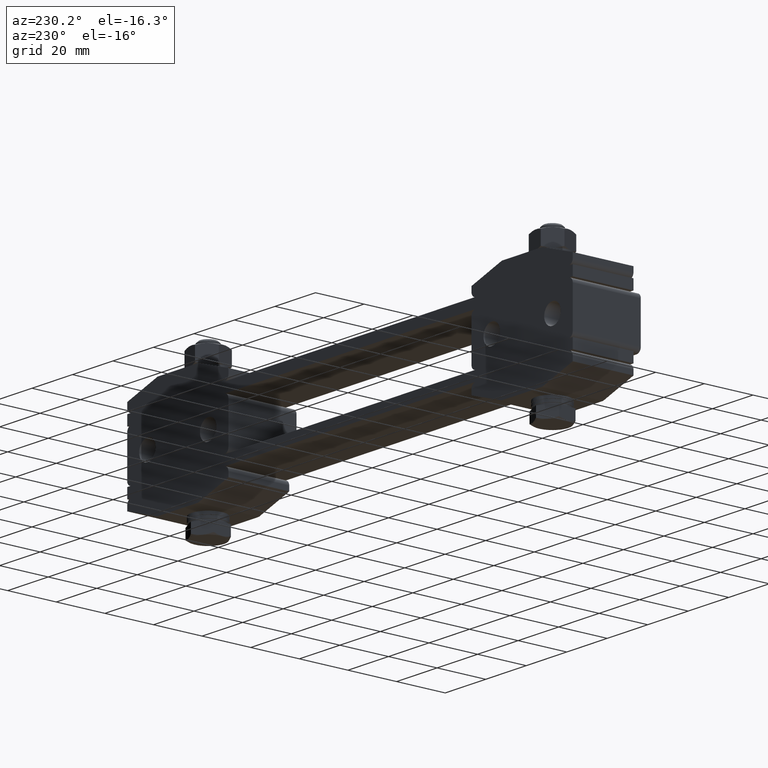
[diagram: clean part render]
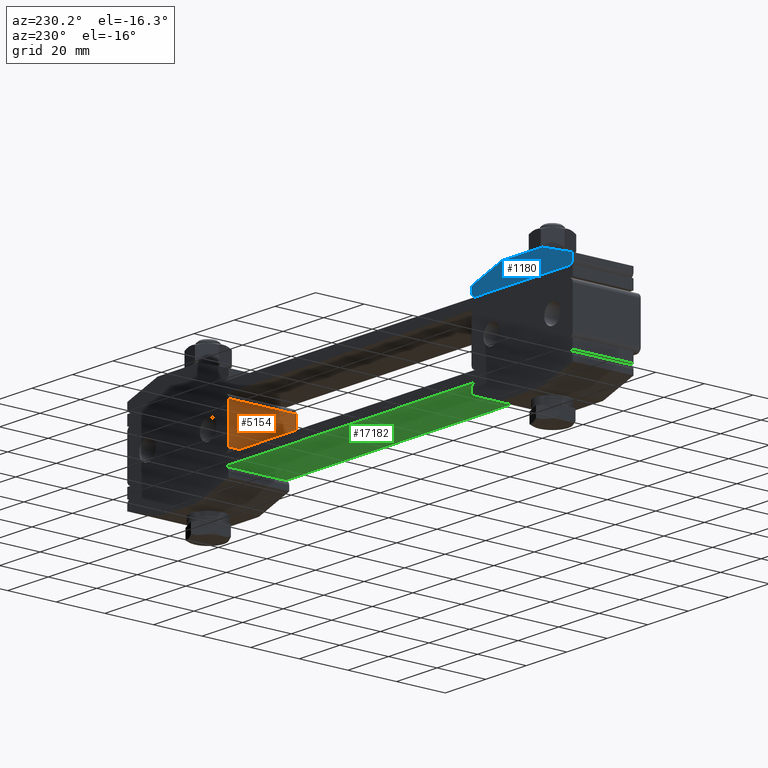
[diagram: same view with three faces highlighted in distinct colors, each labeled with its STEP entity id]
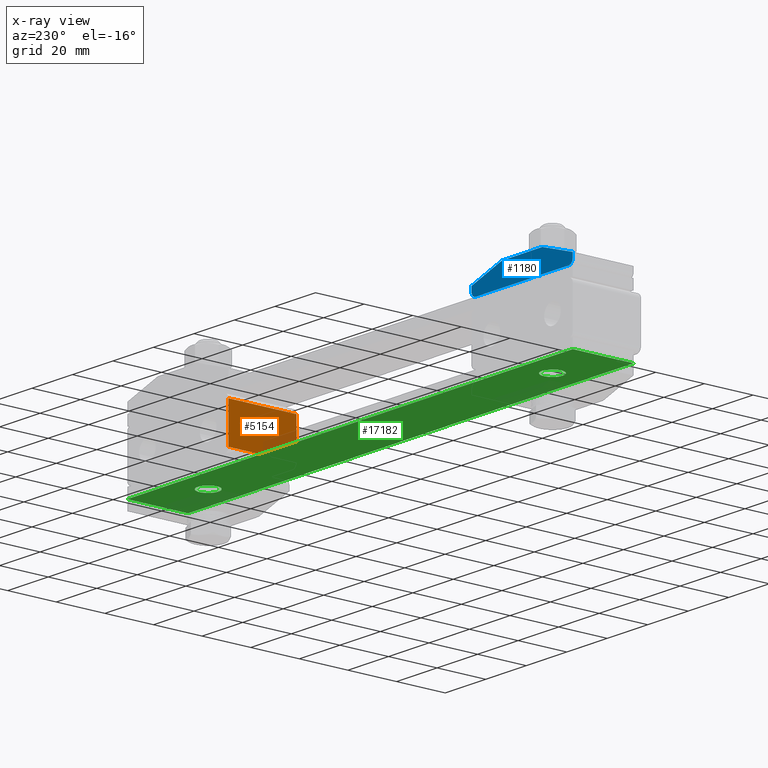
[diagram: x-ray of the same camera — body ghosted, the three highlighted faces saturated]
A machine part, auxiliary view with three faces highlighted in distinct colors.
The next image is the same camera in x-ray (body ghosted, the three faces saturated) — at least one of them is partly hidden behind the body in this view.
Their STEP definitions:

[orange] entity #5154 — the highlighted planar face has unit normal (1, 0, 0).
#292 = DIRECTION ( 'NONE',  ( 1.110223024625156100E-015, 1.000000000000000000, -0.0000000000000000000 ) ) ;
#338 = CARTESIAN_POINT ( 'NONE',  ( 60.00000000000000000, -15.50000000000000000, 6.000000000000000000 ) ) ;
#780 = ORIENTED_EDGE ( 'NONE', *, *, #11799, .T. ) ;
#1093 = EDGE_CURVE ( 'NONE', #10377, #19100, #16262, .T. ) ;
#1196 = CARTESIAN_POINT ( 'NONE',  ( 60.00000000000000000, 12.50000000000000000, 6.000000000000000000 ) ) ;
#1441 = VECTOR ( 'NONE', #292, 1000.000000000000000 ) ;
#2305 = EDGE_CURVE ( 'NONE', #14772, #10377, #12950, .T. ) ;
#3160 = EDGE_CURVE ( 'NONE', #8403, #19100, #17470, .T. ) ;
#4385 = DIRECTION ( 'NONE',  ( 0.0000000000000000000, 0.0000000000000000000, -1.000000000000000000 ) ) ;
#4889 = DIRECTION ( 'NONE',  ( 0.0000000000000000000, 0.0000000000000000000, -1.000000000000000000 ) ) ;
#4960 = VECTOR ( 'NONE', #15209, 1000.000000000000000 ) ;
#5154 = ADVANCED_FACE ( 'NONE', ( #7919 ), #19073, .F. ) ;
#6341 = CARTESIAN_POINT ( 'NONE',  ( 60.00000000000000000, 12.50000000000000000, 22.00000000000000000 ) ) ;
#6703 = CARTESIAN_POINT ( 'NONE',  ( 60.00000000000000000, -15.50000000000000000, 24.00000000000000000 ) ) ;
#7076 = DIRECTION ( 'NONE',  ( 0.0000000000000000000, 0.0000000000000000000, -1.000000000000000000 ) ) ;
#7919 = FACE_OUTER_BOUND ( 'NONE', #13809, .T. ) ;
#8403 = VERTEX_POINT ( 'NONE', #18867 ) ;
#8503 = CARTESIAN_POINT ( 'NONE',  ( 60.00000000000000000, 12.50000000000000000, 24.00000000000000000 ) ) ;
#9252 = ORIENTED_EDGE ( 'NONE', *, *, #2305, .T. ) ;
#10377 = VERTEX_POINT ( 'NONE', #1196 ) ;
#10996 = LINE ( 'NONE', #15169, #1441 ) ;
#11799 = EDGE_CURVE ( 'NONE', #8403, #14772, #10996, .T. ) ;
#12950 = LINE ( 'NONE', #8503, #13993 ) ;
#13809 = EDGE_LOOP ( 'NONE', ( #15962, #780, #9252, #20652 ) ) ;
#13993 = VECTOR ( 'NONE', #7076, 1000.000000000000000 ) ;
#14323 = CARTESIAN_POINT ( 'NONE',  ( 60.00000000000000000, 12.50000000000000000, 24.00000000000000000 ) ) ;
#14772 = VERTEX_POINT ( 'NONE', #6341 ) ;
#15169 = CARTESIAN_POINT ( 'NONE',  ( 60.00000000000000000, 12.50000000000000000, 22.00000000000000000 ) ) ;
#15209 = DIRECTION ( 'NONE',  ( -1.110223024625156100E-015, -1.000000000000000000, 0.0000000000000000000 ) ) ;
#15962 = ORIENTED_EDGE ( 'NONE', *, *, #3160, .F. ) ;
#16262 = LINE ( 'NONE', #18683, #4960 ) ;
#17470 = LINE ( 'NONE', #6703, #20581 ) ;
#18683 = CARTESIAN_POINT ( 'NONE',  ( 60.00000000000000000, 12.50000000000000000, 6.000000000000000000 ) ) ;
#18867 = CARTESIAN_POINT ( 'NONE',  ( 60.00000000000000000, -15.50000000000000000, 22.00000000000000000 ) ) ;
#19073 = PLANE ( 'NONE',  #19140 ) ;
#19100 = VERTEX_POINT ( 'NONE', #338 ) ;
#19140 = AXIS2_PLACEMENT_3D ( 'NONE', #14323, #20886, #4385 ) ;
#20581 = VECTOR ( 'NONE', #4889, 1000.000000000000000 ) ;
#20652 = ORIENTED_EDGE ( 'NONE', *, *, #1093, .T. ) ;
#20886 = DIRECTION ( 'NONE',  ( 1.000000000000000000, 1.110223024625156100E-015, 0.0000000000000000000 ) ) ;

[blue] entity #1180 — the highlighted planar face has unit normal (-0, -1, 0).
#906 = VERTEX_POINT ( 'NONE', #15766 ) ;
#1180 = ADVANCED_FACE ( 'NONE', ( #8062 ), #20136, .F. ) ;
#1223 = CARTESIAN_POINT ( 'NONE',  ( -62.00000000000000000, 12.50000000000000000, 28.00000000000000000 ) ) ;
#1715 = ORIENTED_EDGE ( 'NONE', *, *, #17797, .F. ) ;
#1855 = VECTOR ( 'NONE', #13925, 1000.000000000000000 ) ;
#2019 = ORIENTED_EDGE ( 'NONE', *, *, #21202, .T. ) ;
#2196 = CARTESIAN_POINT ( 'NONE',  ( -62.00000000000000000, 12.50000000000000000, 30.00000000000000000 ) ) ;
#2410 = DIRECTION ( 'NONE',  ( 0.0000000000000000000, 0.0000000000000000000, -1.000000000000000000 ) ) ;
#2517 = CARTESIAN_POINT ( 'NONE',  ( -110.0000000000000000, 12.50000000000000000, 32.00000000000000000 ) ) ;
#2633 = EDGE_CURVE ( 'NONE', #5238, #3286, #13970, .T. ) ;
#2989 = EDGE_LOOP ( 'NONE', ( #13761, #4299, #1715, #9141, #4063, #11942, #2019, #16783 ) ) ;
#3069 = VECTOR ( 'NONE', #6452, 999.9999999999998900 ) ;
#3198 = LINE ( 'NONE', #15497, #13002 ) ;
#3286 = VERTEX_POINT ( 'NONE', #1223 ) ;
#3907 = DIRECTION ( 'NONE',  ( -5.519574696289929800E-017, -1.000000000000000000, 4.040289502454740700E-018 ) ) ;
#4063 = ORIENTED_EDGE ( 'NONE', *, *, #14623, .T. ) ;
#4299 = ORIENTED_EDGE ( 'NONE', *, *, #2633, .T. ) ;
#4366 = AXIS2_PLACEMENT_3D ( 'NONE', #18620, #8880, #2410 ) ;
#4717 = CARTESIAN_POINT ( 'NONE',  ( -110.0000000000000000, 12.50000000000000000, 30.00000000000000000 ) ) ;
#5099 = LINE ( 'NONE', #9661, #13623 ) ;
#5238 = VERTEX_POINT ( 'NONE', #6479 ) ;
#5716 = DIRECTION ( 'NONE',  ( 1.000000000000000000, -5.519574696289799800E-017, -1.387778780781432000E-017 ) ) ;
#6452 = DIRECTION ( 'NONE',  ( 0.9486832980505142100, -5.364093499054570500E-017, -0.3162277660168371100 ) ) ;
#6479 = CARTESIAN_POINT ( 'NONE',  ( -60.00000000000000000, 12.50000000000000000, 30.00000000000000000 ) ) ;
#6709 = EDGE_CURVE ( 'NONE', #8352, #14771, #3198, .T. ) ;
#7706 = EDGE_CURVE ( 'NONE', #15516, #11515, #17494, .T. ) ;
#8062 = FACE_OUTER_BOUND ( 'NONE', #2989, .T. ) ;
#8352 = VERTEX_POINT ( 'NONE', #2517 ) ;
#8880 = DIRECTION ( 'NONE',  ( 5.519574696289929800E-017, 1.000000000000000000, -4.040289502454674500E-018 ) ) ;
#8925 = VECTOR ( 'NONE', #18971, 1000.000000000000000 ) ;
#9141 = ORIENTED_EDGE ( 'NONE', *, *, #7706, .T. ) ;
#9358 = CARTESIAN_POINT ( 'NONE',  ( -110.0000000000000000, 12.50000000000000000, 28.00000000000000000 ) ) ;
#9433 = LINE ( 'NONE', #9358, #8925 ) ;
#9661 = CARTESIAN_POINT ( 'NONE',  ( -60.00000000000000000, 12.50000000000000000, 28.00000000000000000 ) ) ;
#9685 = CARTESIAN_POINT ( 'NONE',  ( -103.8000000000000000, 12.50000000000000000, 46.60000000000000100 ) ) ;
#10295 = LINE ( 'NONE', #12354, #12870 ) ;
#10364 = LINE ( 'NONE', #12266, #1855 ) ;
#10499 = DIRECTION ( 'NONE',  ( 0.0000000000000000000, 0.0000000000000000000, -1.000000000000000000 ) ) ;
#10991 = DIRECTION ( 'NONE',  ( 5.519574696289929800E-017, 1.000000000000000000, -4.040289502454674500E-018 ) ) ;
#11515 = VERTEX_POINT ( 'NONE', #4717 ) ;
#11942 = ORIENTED_EDGE ( 'NONE', *, *, #6709, .T. ) ;
#12266 = CARTESIAN_POINT ( 'NONE',  ( -110.0000000000000000, 12.50000000000000000, 28.00000000000000000 ) ) ;
#12354 = CARTESIAN_POINT ( 'NONE',  ( -110.0000000000000000, 12.50000000000000000, 37.00000000000000000 ) ) ;
#12870 = VECTOR ( 'NONE', #5716, 1000.000000000000000 ) ;
#12894 = CARTESIAN_POINT ( 'NONE',  ( -95.00000000000000000, 12.50000000000000000, 37.00000000000000000 ) ) ;
#13002 = VECTOR ( 'NONE', #20153, 999.9999999999998900 ) ;
#13623 = VECTOR ( 'NONE', #19518, 1000.000000000000000 ) ;
#13761 = ORIENTED_EDGE ( 'NONE', *, *, #17129, .F. ) ;
#13792 = CARTESIAN_POINT ( 'NONE',  ( -110.0000000000000000, 12.50000000000000000, 28.00000000000000000 ) ) ;
#13925 = DIRECTION ( 'NONE',  ( 1.387778780781482000E-017, 4.040289502454740000E-018, 1.000000000000000000 ) ) ;
#13970 = CIRCLE ( 'NONE', #14633, 2.000000000000001800 ) ;
#14117 = VERTEX_POINT ( 'NONE', #18215 ) ;
#14623 = EDGE_CURVE ( 'NONE', #11515, #8352, #10364, .T. ) ;
#14633 = AXIS2_PLACEMENT_3D ( 'NONE', #2196, #10991, #10499 ) ;
#14771 = VERTEX_POINT ( 'NONE', #12894 ) ;
#15497 = CARTESIAN_POINT ( 'NONE',  ( -111.1999999999999900, 12.50000000000000000, 31.60000000000000100 ) ) ;
#15516 = VERTEX_POINT ( 'NONE', #20548 ) ;
#15766 = CARTESIAN_POINT ( 'NONE',  ( -75.00000000000000000, 12.50000000000000000, 37.00000000000000000 ) ) ;
#15887 = EDGE_CURVE ( 'NONE', #906, #14117, #17205, .T. ) ;
#16783 = ORIENTED_EDGE ( 'NONE', *, *, #15887, .T. ) ;
#17129 = EDGE_CURVE ( 'NONE', #5238, #14117, #5099, .T. ) ;
#17205 = LINE ( 'NONE', #9685, #3069 ) ;
#17494 = CIRCLE ( 'NONE', #4366, 2.000000000000001800 ) ;
#17797 = EDGE_CURVE ( 'NONE', #15516, #3286, #9433, .T. ) ;
#18215 = CARTESIAN_POINT ( 'NONE',  ( -60.00000000000000000, 12.50000000000000000, 32.00000000000000000 ) ) ;
#18620 = CARTESIAN_POINT ( 'NONE',  ( -108.0000000000000000, 12.50000000000000000, 30.00000000000000000 ) ) ;
#18890 = DIRECTION ( 'NONE',  ( -1.387778780781482000E-017, -4.040289502454740000E-018, -1.000000000000000000 ) ) ;
#18971 = DIRECTION ( 'NONE',  ( 1.000000000000000000, -5.519574696289799800E-017, -1.387778780781432000E-017 ) ) ;
#19518 = DIRECTION ( 'NONE',  ( 1.387778780781482000E-017, 4.040289502454740000E-018, 1.000000000000000000 ) ) ;
#19794 = AXIS2_PLACEMENT_3D ( 'NONE', #13792, #3907, #18890 ) ;
#20136 = PLANE ( 'NONE',  #19794 ) ;
#20153 = DIRECTION ( 'NONE',  ( 0.9486832980505138800, -5.108563154370071700E-017, 0.3162277660168375500 ) ) ;
#20548 = CARTESIAN_POINT ( 'NONE',  ( -108.0000000000000000, 12.50000000000000000, 28.00000000000000000 ) ) ;
#21202 = EDGE_CURVE ( 'NONE', #14771, #906, #10295, .T. ) ;

[green] entity #17182 — the highlighted planar face has unit normal (0, 0, 1).
#181 = EDGE_CURVE ( 'NONE', #9732, #7993, #4763, .T. ) ;
#1195 = CIRCLE ( 'NONE', #3341, 4.250000000000003600 ) ;
#1604 = VERTEX_POINT ( 'NONE', #6914 ) ;
#2126 = EDGE_CURVE ( 'NONE', #5631, #16101, #3147, .T. ) ;
#3003 = DIRECTION ( 'NONE',  ( 0.0000000000000000000, 0.0000000000000000000, -1.000000000000000000 ) ) ;
#3066 = LINE ( 'NONE', #8215, #20305 ) ;
#3147 = LINE ( 'NONE', #19373, #5463 ) ;
#3178 = CARTESIAN_POINT ( 'NONE',  ( -89.25000000000001400, 0.0000000000000000000, 0.0000000000000000000 ) ) ;
#3341 = AXIS2_PLACEMENT_3D ( 'NONE', #12082, #15229, #16767 ) ;
#3592 = EDGE_LOOP ( 'NONE', ( #15680, #10839, #3761, #8304 ) ) ;
#3615 = DIRECTION ( 'NONE',  ( 0.0000000000000000000, 0.0000000000000000000, 1.000000000000000000 ) ) ;
#3651 = EDGE_CURVE ( 'NONE', #5868, #1604, #3066, .T. ) ;
#3761 = ORIENTED_EDGE ( 'NONE', *, *, #3651, .F. ) ;
#3767 = DIRECTION ( 'NONE',  ( 0.0000000000000000000, 0.0000000000000000000, -1.000000000000000000 ) ) ;
#3843 = CARTESIAN_POINT ( 'NONE',  ( -85.00000000000000000, 0.0000000000000000000, 0.0000000000000000000 ) ) ;
#3987 = CARTESIAN_POINT ( 'NONE',  ( -110.0000000000000000, 12.50000000000000000, 0.0000000000000000000 ) ) ;
#4050 = VECTOR ( 'NONE', #17780, 1000.000000000000000 ) ;
#4763 = CIRCLE ( 'NONE', #7450, 4.250000000000003600 ) ;
#5196 = CARTESIAN_POINT ( 'NONE',  ( -85.00000000000000000, 0.0000000000000000000, 0.0000000000000000000 ) ) ;
#5463 = VECTOR ( 'NONE', #16110, 1000.000000000000000 ) ;
#5631 = VERTEX_POINT ( 'NONE', #18724 ) ;
#5835 = CARTESIAN_POINT ( 'NONE',  ( -80.75000000000000000, 5.204748896376247700E-016, 0.0000000000000000000 ) ) ;
#5868 = VERTEX_POINT ( 'NONE', #9705 ) ;
#6453 = CIRCLE ( 'NONE', #13228, 4.250000000000003600 ) ;
#6710 = CARTESIAN_POINT ( 'NONE',  ( -110.0000000000000000, -12.50000000000000000, 0.0000000000000000000 ) ) ;
#6914 = CARTESIAN_POINT ( 'NONE',  ( 110.0000000000000000, 12.50000000000000000, 0.0000000000000000000 ) ) ;
#7450 = AXIS2_PLACEMENT_3D ( 'NONE', #3843, #3767, #16749 ) ;
#7910 = CARTESIAN_POINT ( 'NONE',  ( 85.00000000000000000, 2.081830801498040100E-014, 0.0000000000000000000 ) ) ;
#7993 = VERTEX_POINT ( 'NONE', #3178 ) ;
#8215 = CARTESIAN_POINT ( 'NONE',  ( 110.0000000000000000, 12.50000000000000000, 0.0000000000000000000 ) ) ;
#8304 = ORIENTED_EDGE ( 'NONE', *, *, #16744, .F. ) ;
#9243 = CARTESIAN_POINT ( 'NONE',  ( 80.75000000000000000, 2.081830801498040100E-014, 0.0000000000000000000 ) ) ;
#9553 = DIRECTION ( 'NONE',  ( -1.000000000000000000, 0.0000000000000000000, 0.0000000000000000000 ) ) ;
#9705 = CARTESIAN_POINT ( 'NONE',  ( 110.0000000000000000, -12.50000000000000000, 0.0000000000000000000 ) ) ;
#9732 = VERTEX_POINT ( 'NONE', #5835 ) ;
#10005 = ORIENTED_EDGE ( 'NONE', *, *, #11754, .F. ) ;
#10172 = DIRECTION ( 'NONE',  ( 1.000000000000000000, 0.0000000000000000000, 0.0000000000000000000 ) ) ;
#10336 = CARTESIAN_POINT ( 'NONE',  ( -110.0000000000000000, -12.50000000000000000, 0.0000000000000000000 ) ) ;
#10405 = VERTEX_POINT ( 'NONE', #15922 ) ;
#10709 = AXIS2_PLACEMENT_3D ( 'NONE', #5196, #13695, #20050 ) ;
#10785 = FACE_BOUND ( 'NONE', #15473, .T. ) ;
#10839 = ORIENTED_EDGE ( 'NONE', *, *, #16208, .F. ) ;
#11520 = PLANE ( 'NONE',  #12837 ) ;
#11754 = EDGE_CURVE ( 'NONE', #18044, #10405, #1195, .T. ) ;
#12082 = CARTESIAN_POINT ( 'NONE',  ( 85.00000000000000000, 2.081830801498040100E-014, 0.0000000000000000000 ) ) ;
#12366 = ORIENTED_EDGE ( 'NONE', *, *, #181, .F. ) ;
#12837 = AXIS2_PLACEMENT_3D ( 'NONE', #6710, #3615, #10172 ) ;
#13228 = AXIS2_PLACEMENT_3D ( 'NONE', #7910, #3003, #9553 ) ;
#13655 = EDGE_CURVE ( 'NONE', #7993, #9732, #19083, .T. ) ;
#13695 = DIRECTION ( 'NONE',  ( 0.0000000000000000000, 0.0000000000000000000, -1.000000000000000000 ) ) ;
#13904 = LINE ( 'NONE', #3987, #15918 ) ;
#14321 = LINE ( 'NONE', #15882, #4050 ) ;
#15161 = EDGE_LOOP ( 'NONE', ( #20151, #12366 ) ) ;
#15229 = DIRECTION ( 'NONE',  ( 0.0000000000000000000, 0.0000000000000000000, -1.000000000000000000 ) ) ;
#15473 = EDGE_LOOP ( 'NONE', ( #10005, #18910 ) ) ;
#15555 = EDGE_CURVE ( 'NONE', #10405, #18044, #6453, .T. ) ;
#15680 = ORIENTED_EDGE ( 'NONE', *, *, #2126, .F. ) ;
#15882 = CARTESIAN_POINT ( 'NONE',  ( -110.0000000000000000, -12.50000000000000000, 0.0000000000000000000 ) ) ;
#15918 = VECTOR ( 'NONE', #19232, 1000.000000000000000 ) ;
#15922 = CARTESIAN_POINT ( 'NONE',  ( 89.25000000000001400, 2.133878290461802200E-014, 0.0000000000000000000 ) ) ;
#16101 = VERTEX_POINT ( 'NONE', #10336 ) ;
#16110 = DIRECTION ( 'NONE',  ( 0.0000000000000000000, -1.000000000000000000, 0.0000000000000000000 ) ) ;
#16134 = FACE_BOUND ( 'NONE', #15161, .T. ) ;
#16208 = EDGE_CURVE ( 'NONE', #1604, #5631, #13904, .T. ) ;
#16744 = EDGE_CURVE ( 'NONE', #16101, #5868, #14321, .T. ) ;
#16749 = DIRECTION ( 'NONE',  ( -1.000000000000000000, 0.0000000000000000000, 0.0000000000000000000 ) ) ;
#16767 = DIRECTION ( 'NONE',  ( -1.000000000000000000, 0.0000000000000000000, 0.0000000000000000000 ) ) ;
#17182 = ADVANCED_FACE ( 'NONE', ( #16134, #10785, #17656 ), #11520, .F. ) ;
#17656 = FACE_OUTER_BOUND ( 'NONE', #3592, .T. ) ;
#17780 = DIRECTION ( 'NONE',  ( 1.000000000000000000, 0.0000000000000000000, 0.0000000000000000000 ) ) ;
#18044 = VERTEX_POINT ( 'NONE', #9243 ) ;
#18724 = CARTESIAN_POINT ( 'NONE',  ( -110.0000000000000000, 12.50000000000000000, 0.0000000000000000000 ) ) ;
#18910 = ORIENTED_EDGE ( 'NONE', *, *, #15555, .F. ) ;
#19083 = CIRCLE ( 'NONE', #10709, 4.250000000000003600 ) ;
#19232 = DIRECTION ( 'NONE',  ( -1.000000000000000000, 5.519574696289839900E-017, 0.0000000000000000000 ) ) ;
#19373 = CARTESIAN_POINT ( 'NONE',  ( -110.0000000000000000, 12.50000000000000000, 0.0000000000000000000 ) ) ;
#19749 = DIRECTION ( 'NONE',  ( 0.0000000000000000000, 1.000000000000000000, 0.0000000000000000000 ) ) ;
#20050 = DIRECTION ( 'NONE',  ( -1.000000000000000000, 0.0000000000000000000, 0.0000000000000000000 ) ) ;
#20151 = ORIENTED_EDGE ( 'NONE', *, *, #13655, .F. ) ;
#20305 = VECTOR ( 'NONE', #19749, 1000.000000000000000 ) ;